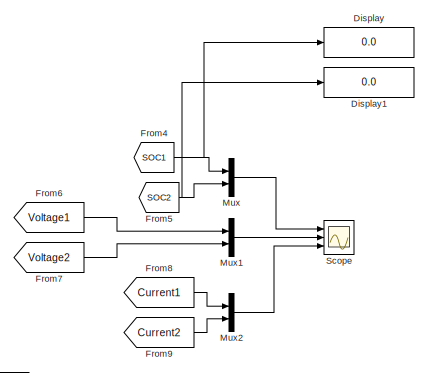
[diagram: root canvas - part 1/2, top left region]
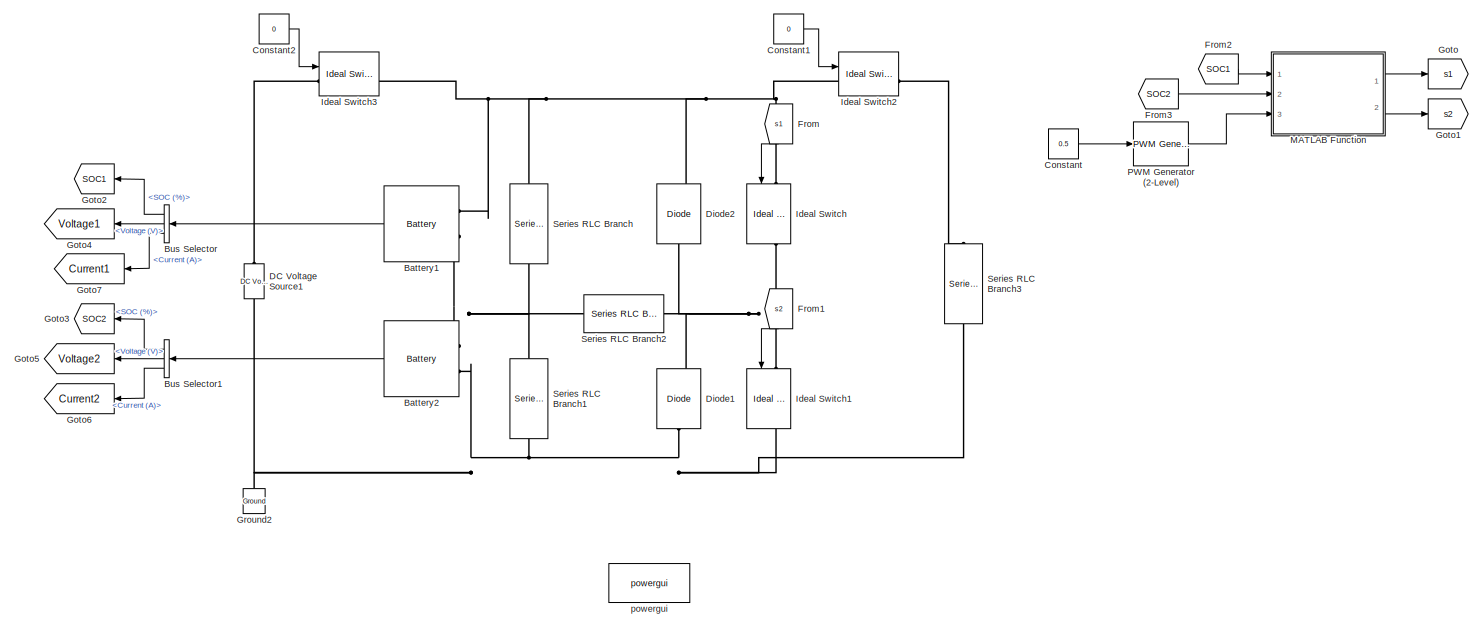
[diagram: root canvas - part 2/2, full width, bottom band]
MODEL slx_c094da315344
KIND model
CONFIG AbsTol = auto
CONFIG EnableMultiTasking = off
CONFIG FixedStep = auto
CONFIG MaxStep = auto
CONFIG MinStep = auto
CONFIG RelTol = 1e-3
CONFIG SampleTimeConstraint = Unconstrained
CONFIG Solver = VariableStepAuto
CONFIG SolverName = VariableStepAuto
CONFIG StartTime = 0.0
CONFIG StopTime = 15
BLOCK [Reference] Battery1  REF=electricdrivelib/Extra Sources/Battery
  Ports = [0, 1, 0, 0, 0, 2]
  SourceBlock = electricdrivelib/Extra Sources/Battery
  SourceProductBaseCode = PS
  SourceType = Battery
BLOCK [Reference] Battery2  REF=electricdrivelib/Extra Sources/Battery
  Ports = [0, 1, 0, 0, 0, 2]
  SourceBlock = electricdrivelib/Extra Sources/Battery
  SourceProductBaseCode = PS
  SourceType = Battery
BLOCK [BusSelector] Bus Selector
  NameLocation = top
  OutputSignals = SOC (%),Voltage (V),Current (A)
  Ports = [1, 3]
BLOCK [BusSelector] Bus Selector1
  NameLocation = top
  OutputSignals = SOC (%),Voltage (V),Current (A)
  Ports = [1, 3]
BLOCK [Constant] Constant
  Value = 0.5
BLOCK [Constant] Constant1
  Value = 0
BLOCK [Constant] Constant2
  Value = 0
BLOCK [Reference] DC Voltage Source1  REF=powerlib/Electrical
Sources/DC Voltage Source
  NameLocation = right
  Ports = [0, 0, 0, 0, 0, 1, 1]
  SourceBlock = powerlib/Electrical\nSources/DC Voltage Source
  SourceProductBaseCode = PS
  SourceType = DC Voltage Source
BLOCK [Reference] Diode1  REF=powerlib/Power
Electronics/Diode
  NameLocation = right
  Ports = [0, 1, 0, 0, 0, 1, 1]
  SourceBlock = powerlib/Power\nElectronics/Diode
  SourceProductBaseCode = PS
  SourceType = Diode
BLOCK [Reference] Diode2  REF=powerlib/Power
Electronics/Diode
  NameLocation = right
  Ports = [0, 1, 0, 0, 0, 1, 1]
  SourceBlock = powerlib/Power\nElectronics/Diode
  SourceProductBaseCode = PS
  SourceType = Diode
BLOCK [Display] Display
  Decimation = 1
  Ports = [1]
BLOCK [Display] Display1
  Decimation = 1
  Ports = [1]
BLOCK [From] From
  GotoTag = s1
  NameLocation = left
BLOCK [From] From1
  GotoTag = s2
  NameLocation = left
BLOCK [From] From2
  GotoTag = SOC1
  NameLocation = top
BLOCK [From] From3
  GotoTag = SOC2
  NameLocation = top
BLOCK [From] From4
  GotoTag = SOC1
  NameLocation = top
BLOCK [From] From5
  GotoTag = SOC2
  NameLocation = top
BLOCK [From] From6
  GotoTag = Voltage1
  NameLocation = top
BLOCK [From] From7
  GotoTag = Voltage2
  NameLocation = top
BLOCK [From] From8
  GotoTag = Current1
  NameLocation = top
BLOCK [From] From9
  GotoTag = Current2
  NameLocation = top
BLOCK [Goto] Goto
  GotoTag = s1
BLOCK [Goto] Goto1
  GotoTag = s2
BLOCK [Goto] Goto2
  GotoTag = SOC1
  NameLocation = top
BLOCK [Goto] Goto3
  GotoTag = SOC2
  NameLocation = top
BLOCK [Goto] Goto4
  GotoTag = Voltage1
  NameLocation = top
BLOCK [Goto] Goto5
  GotoTag = Voltage2
  NameLocation = top
BLOCK [Goto] Goto6
  GotoTag = Current2
  NameLocation = top
BLOCK [Goto] Goto7
  GotoTag = Current1
  NameLocation = top
BLOCK [Reference] Ground2  REF=powerlib/Elements/Ground
  NameLocation = right
  Ports = [0, 0, 0, 0, 0, 1]
  SourceBlock = powerlib/Elements/Ground
  SourceProductBaseCode = PS
  SourceType = Ground
BLOCK [Reference] Ideal Switch  REF=powerlib/Power
Electronics/Ideal Switch
  NameLocation = left
  Ports = [1, 1, 0, 0, 0, 1, 1]
  SourceBlock = powerlib/Power\nElectronics/Ideal Switch
  SourceProductBaseCode = PS
  SourceType = Ideal Switch
BLOCK [Reference] Ideal Switch1  REF=powerlib/Power
Electronics/Ideal Switch
  NameLocation = left
  Ports = [1, 1, 0, 0, 0, 1, 1]
  SourceBlock = powerlib/Power\nElectronics/Ideal Switch
  SourceProductBaseCode = PS
  SourceType = Ideal Switch
BLOCK [Reference] Ideal Switch2  REF=powerlib/Power
Electronics/Ideal Switch
  Ports = [1, 1, 0, 0, 0, 1, 1]
  SourceBlock = powerlib/Power\nElectronics/Ideal Switch
  SourceProductBaseCode = PS
  SourceType = Ideal Switch
BLOCK [Reference] Ideal Switch3  REF=powerlib/Power
Electronics/Ideal Switch
  Ports = [1, 1, 0, 0, 0, 1, 1]
  SourceBlock = powerlib/Power\nElectronics/Ideal Switch
  SourceProductBaseCode = PS
  SourceType = Ideal Switch
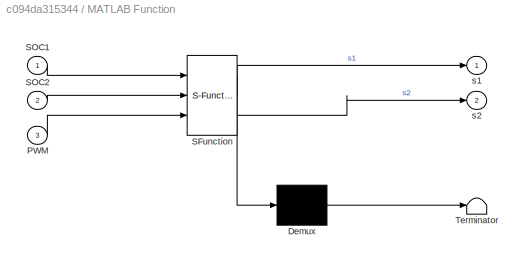
BLOCK [SubSystem] MATLAB Function
  ErrorFcn = Stateflow.Translate.translate
  PermitHierarchicalResolution = ExplicitOnly
  Ports = [3, 2]
  RequestExecContextInheritance = off
  SFBlockType = MATLAB Function
  TreatAsAtomicUnit = on
BLOCK [Demux] MATLAB Function/ Demux 
  Outputs = 1
  Ports = [1, 1]
BLOCK [S-Function] MATLAB Function/ SFunction 
  EnableBusSupport = on
  FunctionName = sf_sfun
  PortCounts = [3 3]
  Ports = [3, 3]
  SFcnIsStateOwnerBlock = off
  SFunctionDeploymentMode = off
  Tag = Stateflow S-Function 2
BLOCK [Terminator] MATLAB Function/ Terminator 
BLOCK [Inport] MATLAB Function/PWM
  Port = 3
BLOCK [Inport] MATLAB Function/SOC1
BLOCK [Inport] MATLAB Function/SOC2
  Port = 2
BLOCK [Outport] MATLAB Function/s1
BLOCK [Outport] MATLAB Function/s2
  Port = 2
BLOCK [Mux] Mux
  DisplayOption = bar
  Inputs = 2
  Ports = [2, 1]
BLOCK [Mux] Mux1
  DisplayOption = bar
  Inputs = 2
  Ports = [2, 1]
BLOCK [Mux] Mux2
  DisplayOption = bar
  Inputs = 2
  Ports = [2, 1]
BLOCK [Reference] PWM Generator (2-Level)  REF=powerlib_meascontrol/Pulse & Signal
Generators/PWM Generator
(2-Level)
  Ports = [1, 1]
  SourceBlock = powerlib_meascontrol/Pulse & Signal\nGenerators/PWM Generator\n(2-Level)
  SourceProductBaseCode = PS
  SourceType = PWM Generator (2-Level)
BLOCK [Scope] Scope
  Floating = off
  NumInputPorts = 3
  Ports = [3]
  ScopeSpecificationString = Simulink.scopes.TimeScopeBlockCfg('CurrentConfiguration', extmgr.ConfigurationSet(extmgr.Configuration('Core','General UI',true),extmgr.Configuration('Core','Source UI',true),extmgr.Configuration('Sources','WiredSimulink',true),extmgr.Configuration('Visuals','Time Domain',true,'SerializedDisplays',{struct('MinYLimReal','38.77878','MaxYLimReal','51.18159','YLabelReal','','MinYLimMag','38.77878','Ma...<+2777ch>
BLOCK [Reference] Series RLC Branch  REF=powerlib/Elements/Series RLC Branch
  NameLocation = left
  Ports = [0, 0, 0, 0, 0, 1, 1]
  SourceBlock = powerlib/Elements/Series RLC Branch
  SourceProductBaseCode = PS
  SourceType = Series RLC Branch
BLOCK [Reference] Series RLC Branch1  REF=powerlib/Elements/Series RLC Branch
  NameLocation = left
  Ports = [0, 0, 0, 0, 0, 1, 1]
  SourceBlock = powerlib/Elements/Series RLC Branch
  SourceProductBaseCode = PS
  SourceType = Series RLC Branch
BLOCK [Reference] Series RLC Branch2  REF=powerlib/Elements/Series RLC Branch
  Ports = [0, 0, 0, 0, 0, 1, 1]
  SourceBlock = powerlib/Elements/Series RLC Branch
  SourceProductBaseCode = PS
  SourceType = Series RLC Branch
BLOCK [Reference] Series RLC Branch3  REF=powerlib/Elements/Series RLC Branch
  NameLocation = left
  Ports = [0, 0, 0, 0, 0, 1, 1]
  SourceBlock = powerlib/Elements/Series RLC Branch
  SourceProductBaseCode = PS
  SourceType = Series RLC Branch
BLOCK [Reference] powergui  REF=powerlib/powergui
  Ports = []
  Priority = 1
  SourceBlock = powerlib/powergui
  SourceProductBaseCode = PS
  SourceType = PSB option menu block
LINE Battery1:1 -> Bus Selector:1
LINE Battery2:1 -> Bus Selector1:1
LINE Bus Selector1:1 -> Goto3:1
LINE Bus Selector1:2 -> Goto5:1
LINE Bus Selector1:3 -> Goto6:1
LINE Bus Selector:1 -> Goto2:1
LINE Bus Selector:2 -> Goto4:1
LINE Bus Selector:3 -> Goto7:1
LINE Constant1:1 -> Ideal Switch2:1
LINE Constant2:1 -> Ideal Switch3:1
LINE Constant:1 -> PWM Generator (2-Level):1
LINE From1:1 -> Ideal Switch1:1
LINE From2:1 -> MATLAB Function:1
LINE From3:1 -> MATLAB Function:2
NET From4:1 -> Display:1, Mux:1
NET From5:1 -> Display1:1, Mux:2
LINE From6:1 -> Mux1:1
LINE From7:1 -> Mux1:2
LINE From8:1 -> Mux2:1
LINE From9:1 -> Mux2:2
LINE From:1 -> Ideal Switch:1
LINE MATLAB Function:1 -> Goto:1
LINE MATLAB Function:2 -> Goto1:1
LINE Mux1:1 -> Scope:2
LINE Mux2:1 -> Scope:3
LINE Mux:1 -> Scope:1
LINE PWM Generator (2-Level):1 -> MATLAB Function:3
PNET net1: Battery1:LConn1 -- Diode2:RConn1 -- Ideal Switch2:LConn1 -- Ideal Switch3:RConn1 -- Ideal Switch:LConn1 -- Series RLC Branch:LConn1
PNET net2: Battery1:LConn2 -- Battery2:LConn1 -- Series RLC Branch1:LConn1 -- Series RLC Branch2:LConn1 -- Series RLC Branch:RConn1
PNET net3: Battery2:LConn2 -- DC Voltage Source1:LConn1 -- Diode1:LConn1 -- Ground2:LConn1 -- Ideal Switch1:RConn1 -- Series RLC Branch1:RConn1 -- Series RLC Branch3:RConn1
PLINE DC Voltage Source1:RConn1 -- Ideal Switch3:LConn1
PNET net4: Diode1:RConn1 -- Diode2:LConn1 -- Ideal Switch1:LConn1 -- Ideal Switch:RConn1 -- Series RLC Branch2:RConn1
PLINE Ideal Switch2:RConn1 -- Series RLC Branch3:LConn1
note: NET lines group one-source signal fan-out (src -> all destinations, sorted); 1:1 wires keep LINE; PNET lines group multi-terminal physical nets as a canonical sorted terminal list (undirected conserving connections); 2-terminal nets keep the pairwise PLINE form
CHART MATLAB Function states=1 transitions=1
  STATE_LABEL 'eML_blk_kernel()'
  STATE_LABEL 'SCRIPT:\nfunction [s1,s2] = fcn(SOC1, SOC2, PWM)\n%#codegen\nSOC1 = SOC1(1);\nSOC2 = SOC2(1);\nPWM = PWM(1);\n% Inisialisasi output\ns1 = 0;\ns2 = 0;\nif SOC2<SOC1\n    s1=PWM;\n    s2=0;\nelseif SOC1<SOC2\n    s1=0;\n    s2=PWM;\nelse \n    s1=0;\n    s2=0;      \nend\n'
CHART  states=0 transitions=0
